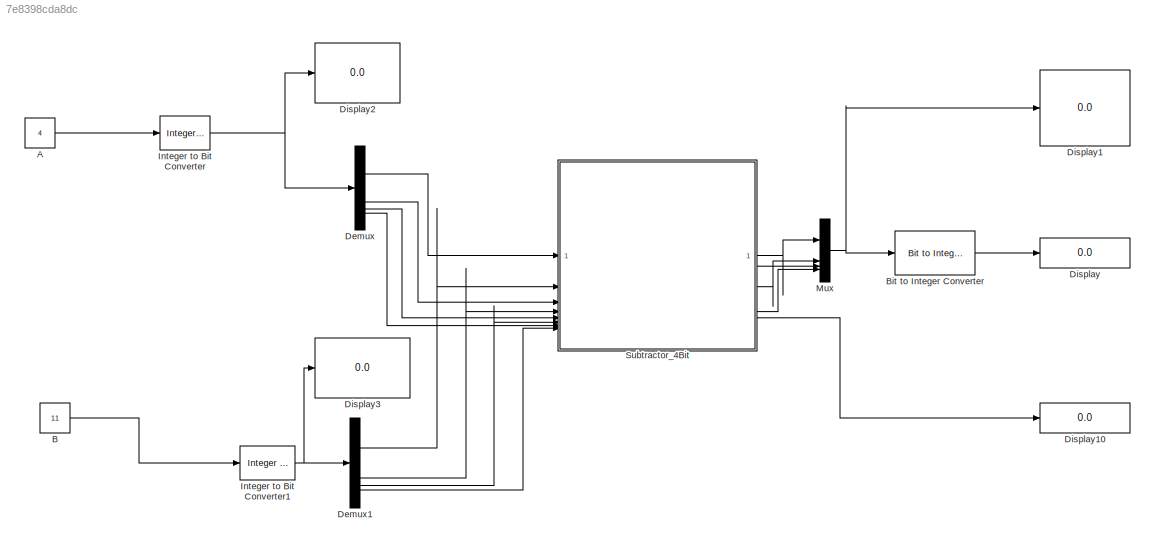
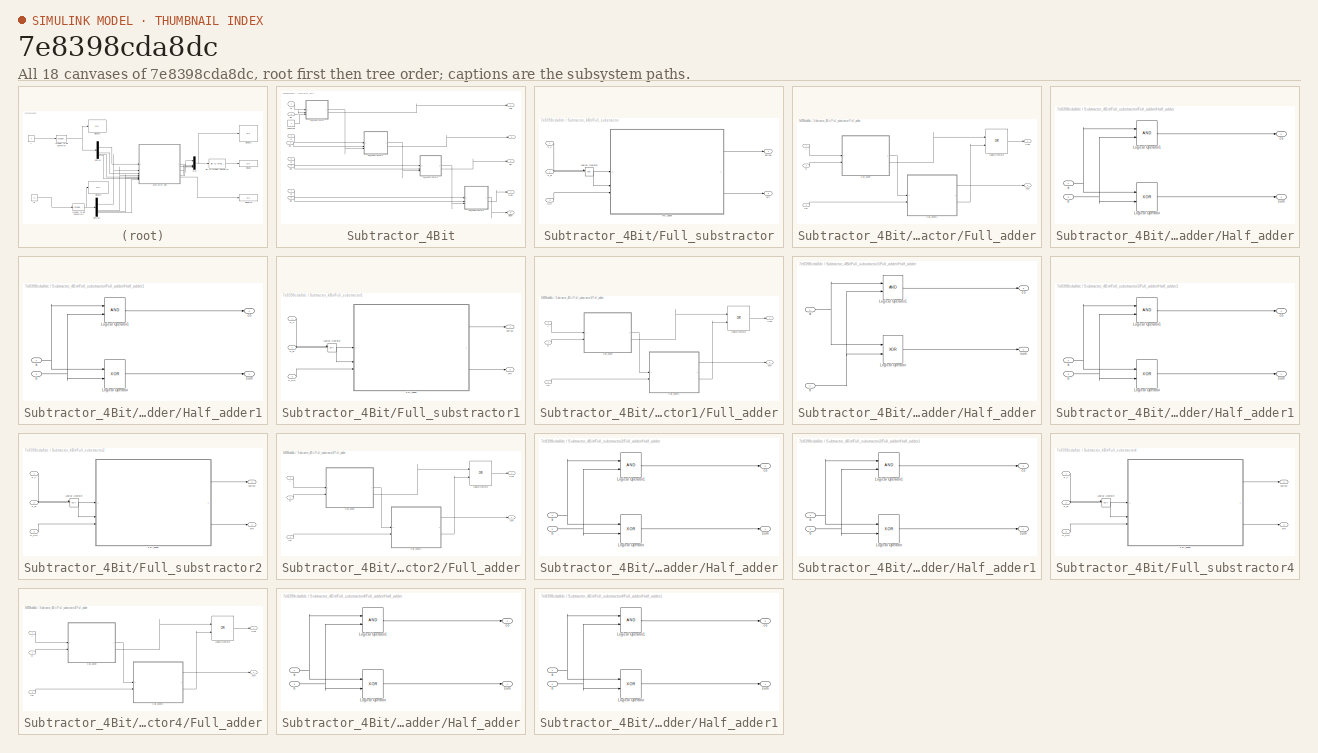
[diagram: thumbnail index - all 18 canvases of the model, root first then tree order]
MODEL slx_7e8398cda8dc
KIND model
CONFIG AbsTol = auto
CONFIG EnableMultiTasking = off
CONFIG FixedStep = auto
CONFIG MaxStep = auto
CONFIG MinStep = auto
CONFIG RelTol = 1e-3
CONFIG SampleTimeConstraint = Unconstrained
CONFIG SolverName = VariableStepAuto
CONFIG StartTime = 0.0
CONFIG StopTime = 10.0
BLOCK [Constant] A
  Value = 4
BLOCK [Constant] B
  Value = 11
BLOCK [Reference] Bit to Integer Converter  REF=simulink/Logic and Bit
Operations/Bit to Integer
Converter
  SourceBlock = simulink/Logic and Bit\nOperations/Bit to Integer\nConverter
  SourceType = Bit to Integer Converter
BLOCK [Demux] Demux
BLOCK [Demux] Demux1
BLOCK [Display] Display
  Decimation = 1
BLOCK [Display] Display1
  Decimation = 1
BLOCK [Display] Display10
  Decimation = 1
BLOCK [Display] Display2
  Decimation = 1
BLOCK [Display] Display3
  Decimation = 1
BLOCK [Reference] Integer to Bit Converter  REF=simulink/Logic and Bit
Operations/Integer to Bit
Converter
  SourceBlock = simulink/Logic and Bit\nOperations/Integer to Bit\nConverter
  SourceType = Integer to Bit Converter
BLOCK [Reference] Integer to Bit Converter1  REF=simulink/Logic and Bit
Operations/Integer to Bit
Converter
  SourceBlock = simulink/Logic and Bit\nOperations/Integer to Bit\nConverter
  SourceType = Integer to Bit Converter
BLOCK [Mux] Mux
  DisplayOption = bar
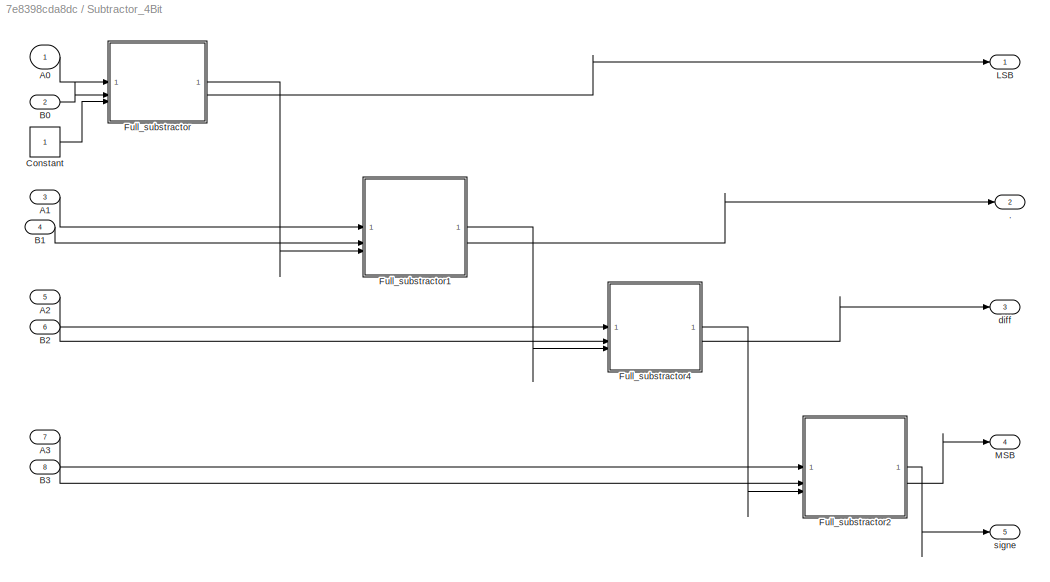
BLOCK [SubSystem] Subtractor_4Bit
BLOCK [Outport] Subtractor_4Bit/.
  Port = 2
BLOCK [Inport] Subtractor_4Bit/A0
BLOCK [Inport] Subtractor_4Bit/A1
  Port = 3
BLOCK [Inport] Subtractor_4Bit/A2
  Port = 5
BLOCK [Inport] Subtractor_4Bit/A3
  Port = 7
BLOCK [Inport] Subtractor_4Bit/B0
  Port = 2
BLOCK [Inport] Subtractor_4Bit/B1
  Port = 4
BLOCK [Inport] Subtractor_4Bit/B2
  Port = 6
BLOCK [Inport] Subtractor_4Bit/B3
  Port = 8
BLOCK [Constant] Subtractor_4Bit/Constant
BLOCK [SubSystem] Subtractor_4Bit/Full_substractor
BLOCK [Inport] Subtractor_4Bit/Full_substractor/Cin
  Port = 3
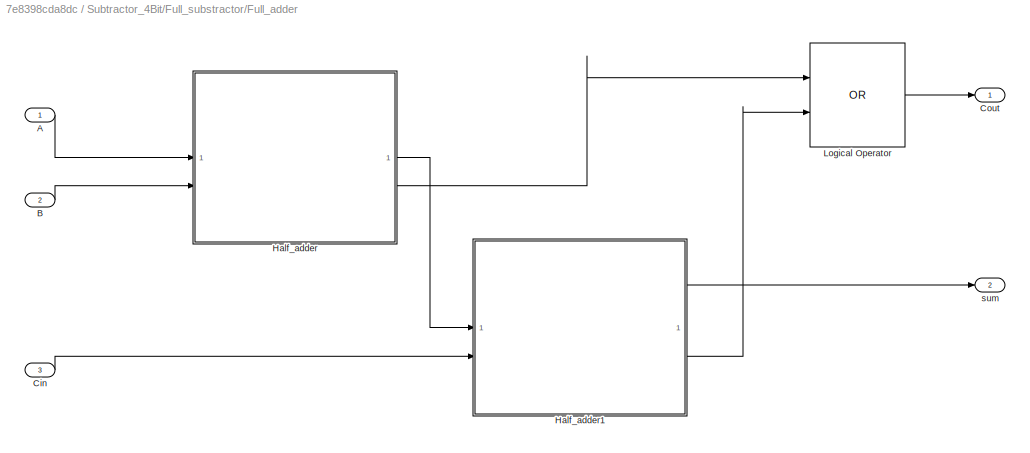
BLOCK [SubSystem] Subtractor_4Bit/Full_substractor/Full_adder
BLOCK [Inport] Subtractor_4Bit/Full_substractor/Full_adder/A
BLOCK [Inport] Subtractor_4Bit/Full_substractor/Full_adder/B
  Port = 2
BLOCK [Inport] Subtractor_4Bit/Full_substractor/Full_adder/Cin
  Port = 3
BLOCK [Outport] Subtractor_4Bit/Full_substractor/Full_adder/Cout
BLOCK [SubSystem] Subtractor_4Bit/Full_substractor/Full_adder/Half_adder
BLOCK [Logic] Subtractor_4Bit/Full_substractor/Full_adder/Half_adder/Logical Operator
  AllPortsSameDT = off
  Operator = XOR
  OutDataTypeStr = boolean
BLOCK [Logic] Subtractor_4Bit/Full_substractor/Full_adder/Half_adder/Logical Operator1
  AllPortsSameDT = off
  OutDataTypeStr = boolean
BLOCK [Inport] Subtractor_4Bit/Full_substractor/Full_adder/Half_adder/a
BLOCK [Inport] Subtractor_4Bit/Full_substractor/Full_adder/Half_adder/b
  Port = 2
BLOCK [Outport] Subtractor_4Bit/Full_substractor/Full_adder/Half_adder/co
  Port = 2
BLOCK [Outport] Subtractor_4Bit/Full_substractor/Full_adder/Half_adder/sum
BLOCK [SubSystem] Subtractor_4Bit/Full_substractor/Full_adder/Half_adder1
BLOCK [Logic] Subtractor_4Bit/Full_substractor/Full_adder/Half_adder1/Logical Operator
  AllPortsSameDT = off
  Operator = XOR
  OutDataTypeStr = boolean
BLOCK [Logic] Subtractor_4Bit/Full_substractor/Full_adder/Half_adder1/Logical Operator1
  AllPortsSameDT = off
  OutDataTypeStr = boolean
BLOCK [Inport] Subtractor_4Bit/Full_substractor/Full_adder/Half_adder1/a
BLOCK [Inport] Subtractor_4Bit/Full_substractor/Full_adder/Half_adder1/b
  Port = 2
BLOCK [Outport] Subtractor_4Bit/Full_substractor/Full_adder/Half_adder1/co
  Port = 2
BLOCK [Outport] Subtractor_4Bit/Full_substractor/Full_adder/Half_adder1/sum
BLOCK [Logic] Subtractor_4Bit/Full_substractor/Full_adder/Logical Operator
  AllPortsSameDT = off
  Operator = OR
  OutDataTypeStr = boolean
BLOCK [Outport] Subtractor_4Bit/Full_substractor/Full_adder/sum
  Port = 2
BLOCK [Logic] Subtractor_4Bit/Full_substractor/Logical Operator
  AllPortsSameDT = off
  Operator = NOT
  OutDataTypeStr = boolean
BLOCK [Inport] Subtractor_4Bit/Full_substractor/S_A
BLOCK [Inport] Subtractor_4Bit/Full_substractor/S_B
  Port = 2
BLOCK [Outport] Subtractor_4Bit/Full_substractor/borrow
BLOCK [Outport] Subtractor_4Bit/Full_substractor/diff
  Port = 2
BLOCK [SubSystem] Subtractor_4Bit/Full_substractor1
BLOCK [SubSystem] Subtractor_4Bit/Full_substractor1/Full_adder
BLOCK [Inport] Subtractor_4Bit/Full_substractor1/Full_adder/A
BLOCK [Inport] Subtractor_4Bit/Full_substractor1/Full_adder/B
  Port = 2
BLOCK [Inport] Subtractor_4Bit/Full_substractor1/Full_adder/Cin
  Port = 3
BLOCK [Outport] Subtractor_4Bit/Full_substractor1/Full_adder/Cout
BLOCK [SubSystem] Subtractor_4Bit/Full_substractor1/Full_adder/Half_adder
BLOCK [Logic] Subtractor_4Bit/Full_substractor1/Full_adder/Half_adder/Logical Operator
  AllPortsSameDT = off
  Operator = XOR
  OutDataTypeStr = boolean
BLOCK [Logic] Subtractor_4Bit/Full_substractor1/Full_adder/Half_adder/Logical Operator1
  AllPortsSameDT = off
  OutDataTypeStr = boolean
BLOCK [Inport] Subtractor_4Bit/Full_substractor1/Full_adder/Half_adder/a
BLOCK [Inport] Subtractor_4Bit/Full_substractor1/Full_adder/Half_adder/b
  Port = 2
BLOCK [Outport] Subtractor_4Bit/Full_substractor1/Full_adder/Half_adder/co
  Port = 2
BLOCK [Outport] Subtractor_4Bit/Full_substractor1/Full_adder/Half_adder/sum
BLOCK [SubSystem] Subtractor_4Bit/Full_substractor1/Full_adder/Half_adder1
BLOCK [Logic] Subtractor_4Bit/Full_substractor1/Full_adder/Half_adder1/Logical Operator
  AllPortsSameDT = off
  Operator = XOR
  OutDataTypeStr = boolean
BLOCK [Logic] Subtractor_4Bit/Full_substractor1/Full_adder/Half_adder1/Logical Operator1
  AllPortsSameDT = off
  OutDataTypeStr = boolean
BLOCK [Inport] Subtractor_4Bit/Full_substractor1/Full_adder/Half_adder1/a
BLOCK [Inport] Subtractor_4Bit/Full_substractor1/Full_adder/Half_adder1/b
  Port = 2
BLOCK [Outport] Subtractor_4Bit/Full_substractor1/Full_adder/Half_adder1/co
  Port = 2
BLOCK [Outport] Subtractor_4Bit/Full_substractor1/Full_adder/Half_adder1/sum
BLOCK [Logic] Subtractor_4Bit/Full_substractor1/Full_adder/Logical Operator
  AllPortsSameDT = off
  Operator = OR
  OutDataTypeStr = boolean
BLOCK [Outport] Subtractor_4Bit/Full_substractor1/Full_adder/sum
  Port = 2
BLOCK [Logic] Subtractor_4Bit/Full_substractor1/Logical Operator
  AllPortsSameDT = off
  Operator = NOT
  OutDataTypeStr = boolean
BLOCK [Inport] Subtractor_4Bit/Full_substractor1/S_A
BLOCK [Inport] Subtractor_4Bit/Full_substractor1/S_B
  Port = 2
BLOCK [Inport] Subtractor_4Bit/Full_substractor1/S_Cin
  Port = 3
BLOCK [Outport] Subtractor_4Bit/Full_substractor1/borrow
BLOCK [Outport] Subtractor_4Bit/Full_substractor1/diff
  Port = 2
BLOCK [SubSystem] Subtractor_4Bit/Full_substractor2
BLOCK [SubSystem] Subtractor_4Bit/Full_substractor2/Full_adder
BLOCK [Inport] Subtractor_4Bit/Full_substractor2/Full_adder/A
BLOCK [Inport] Subtractor_4Bit/Full_substractor2/Full_adder/B
  Port = 2
BLOCK [Inport] Subtractor_4Bit/Full_substractor2/Full_adder/Cin
  Port = 3
BLOCK [Outport] Subtractor_4Bit/Full_substractor2/Full_adder/Cout
BLOCK [SubSystem] Subtractor_4Bit/Full_substractor2/Full_adder/Half_adder
BLOCK [Logic] Subtractor_4Bit/Full_substractor2/Full_adder/Half_adder/Logical Operator
  AllPortsSameDT = off
  Operator = XOR
  OutDataTypeStr = boolean
BLOCK [Logic] Subtractor_4Bit/Full_substractor2/Full_adder/Half_adder/Logical Operator1
  AllPortsSameDT = off
  OutDataTypeStr = boolean
BLOCK [Inport] Subtractor_4Bit/Full_substractor2/Full_adder/Half_adder/a
BLOCK [Inport] Subtractor_4Bit/Full_substractor2/Full_adder/Half_adder/b
  Port = 2
BLOCK [Outport] Subtractor_4Bit/Full_substractor2/Full_adder/Half_adder/co
  Port = 2
BLOCK [Outport] Subtractor_4Bit/Full_substractor2/Full_adder/Half_adder/sum
BLOCK [SubSystem] Subtractor_4Bit/Full_substractor2/Full_adder/Half_adder1
BLOCK [Logic] Subtractor_4Bit/Full_substractor2/Full_adder/Half_adder1/Logical Operator
  AllPortsSameDT = off
  Operator = XOR
  OutDataTypeStr = boolean
BLOCK [Logic] Subtractor_4Bit/Full_substractor2/Full_adder/Half_adder1/Logical Operator1
  AllPortsSameDT = off
  OutDataTypeStr = boolean
BLOCK [Inport] Subtractor_4Bit/Full_substractor2/Full_adder/Half_adder1/a
BLOCK [Inport] Subtractor_4Bit/Full_substractor2/Full_adder/Half_adder1/b
  Port = 2
BLOCK [Outport] Subtractor_4Bit/Full_substractor2/Full_adder/Half_adder1/co
  Port = 2
BLOCK [Outport] Subtractor_4Bit/Full_substractor2/Full_adder/Half_adder1/sum
BLOCK [Logic] Subtractor_4Bit/Full_substractor2/Full_adder/Logical Operator
  AllPortsSameDT = off
  Operator = OR
  OutDataTypeStr = boolean
BLOCK [Outport] Subtractor_4Bit/Full_substractor2/Full_adder/sum
  Port = 2
BLOCK [Logic] Subtractor_4Bit/Full_substractor2/Logical Operator
  AllPortsSameDT = off
  Operator = NOT
  OutDataTypeStr = boolean
BLOCK [Inport] Subtractor_4Bit/Full_substractor2/S_A
BLOCK [Inport] Subtractor_4Bit/Full_substractor2/S_B
  Port = 2
BLOCK [Inport] Subtractor_4Bit/Full_substractor2/S_Cin
  Port = 3
BLOCK [Outport] Subtractor_4Bit/Full_substractor2/borrow
BLOCK [Outport] Subtractor_4Bit/Full_substractor2/diff
  Port = 2
BLOCK [SubSystem] Subtractor_4Bit/Full_substractor4
BLOCK [SubSystem] Subtractor_4Bit/Full_substractor4/Full_adder
BLOCK [Inport] Subtractor_4Bit/Full_substractor4/Full_adder/A
BLOCK [Inport] Subtractor_4Bit/Full_substractor4/Full_adder/B
  Port = 2
BLOCK [Inport] Subtractor_4Bit/Full_substractor4/Full_adder/Cin
  Port = 3
BLOCK [Outport] Subtractor_4Bit/Full_substractor4/Full_adder/Cout
BLOCK [SubSystem] Subtractor_4Bit/Full_substractor4/Full_adder/Half_adder
BLOCK [Logic] Subtractor_4Bit/Full_substractor4/Full_adder/Half_adder/Logical Operator
  AllPortsSameDT = off
  Operator = XOR
  OutDataTypeStr = boolean
BLOCK [Logic] Subtractor_4Bit/Full_substractor4/Full_adder/Half_adder/Logical Operator1
  AllPortsSameDT = off
  OutDataTypeStr = boolean
BLOCK [Inport] Subtractor_4Bit/Full_substractor4/Full_adder/Half_adder/a
BLOCK [Inport] Subtractor_4Bit/Full_substractor4/Full_adder/Half_adder/b
  Port = 2
BLOCK [Outport] Subtractor_4Bit/Full_substractor4/Full_adder/Half_adder/co
  Port = 2
BLOCK [Outport] Subtractor_4Bit/Full_substractor4/Full_adder/Half_adder/sum
BLOCK [SubSystem] Subtractor_4Bit/Full_substractor4/Full_adder/Half_adder1
BLOCK [Logic] Subtractor_4Bit/Full_substractor4/Full_adder/Half_adder1/Logical Operator
  AllPortsSameDT = off
  Operator = XOR
  OutDataTypeStr = boolean
BLOCK [Logic] Subtractor_4Bit/Full_substractor4/Full_adder/Half_adder1/Logical Operator1
  AllPortsSameDT = off
  OutDataTypeStr = boolean
BLOCK [Inport] Subtractor_4Bit/Full_substractor4/Full_adder/Half_adder1/a
BLOCK [Inport] Subtractor_4Bit/Full_substractor4/Full_adder/Half_adder1/b
  Port = 2
BLOCK [Outport] Subtractor_4Bit/Full_substractor4/Full_adder/Half_adder1/co
  Port = 2
BLOCK [Outport] Subtractor_4Bit/Full_substractor4/Full_adder/Half_adder1/sum
BLOCK [Logic] Subtractor_4Bit/Full_substractor4/Full_adder/Logical Operator
  AllPortsSameDT = off
  Operator = OR
  OutDataTypeStr = boolean
BLOCK [Outport] Subtractor_4Bit/Full_substractor4/Full_adder/sum
  Port = 2
BLOCK [Logic] Subtractor_4Bit/Full_substractor4/Logical Operator
  AllPortsSameDT = off
  Operator = NOT
  OutDataTypeStr = boolean
BLOCK [Inport] Subtractor_4Bit/Full_substractor4/S_A
BLOCK [Inport] Subtractor_4Bit/Full_substractor4/S_B
  Port = 2
BLOCK [Inport] Subtractor_4Bit/Full_substractor4/S_Cin
  Port = 3
BLOCK [Outport] Subtractor_4Bit/Full_substractor4/borrow
BLOCK [Outport] Subtractor_4Bit/Full_substractor4/diff
  Port = 2
BLOCK [Outport] Subtractor_4Bit/LSB
BLOCK [Outport] Subtractor_4Bit/MSB
  Port = 4
BLOCK [Outport] Subtractor_4Bit/diff
  Port = 3
BLOCK [Outport] Subtractor_4Bit/signe
  Port = 5
LINE A:1 -> Integer to Bit Converter:1
LINE B:1 -> Integer to Bit Converter1:1
LINE Bit to Integer Converter:1 -> Display:1
LINE Demux1:1 -> Subtractor_4Bit:2
LINE Demux1:2 -> Subtractor_4Bit:4
LINE Demux1:3 -> Subtractor_4Bit:6
LINE Demux1:4 -> Subtractor_4Bit:8
LINE Demux:1 -> Subtractor_4Bit:1
LINE Demux:2 -> Subtractor_4Bit:3
LINE Demux:3 -> Subtractor_4Bit:5
LINE Demux:4 -> Subtractor_4Bit:7
NET Integer to Bit Converter1:1 -> Demux1:1, Display3:1
NET Integer to Bit Converter:1 -> Demux:1, Display2:1
NET Mux:1 -> Bit to Integer Converter:1, Display1:1
LINE Subtractor_4Bit/A0:1 -> Subtractor_4Bit/Full_substractor:1
LINE Subtractor_4Bit/A1:1 -> Subtractor_4Bit/Full_substractor1:1
LINE Subtractor_4Bit/A2:1 -> Subtractor_4Bit/Full_substractor4:1
LINE Subtractor_4Bit/A3:1 -> Subtractor_4Bit/Full_substractor2:1
LINE Subtractor_4Bit/B0:1 -> Subtractor_4Bit/Full_substractor:2
LINE Subtractor_4Bit/B1:1 -> Subtractor_4Bit/Full_substractor1:2
LINE Subtractor_4Bit/B2:1 -> Subtractor_4Bit/Full_substractor4:2
LINE Subtractor_4Bit/B3:1 -> Subtractor_4Bit/Full_substractor2:2
LINE Subtractor_4Bit/Constant:1 -> Subtractor_4Bit/Full_substractor:3
LINE Subtractor_4Bit/Full_substractor/Cin:1 -> Subtractor_4Bit/Full_substractor/Full_adder:3
LINE Subtractor_4Bit/Full_substractor/Full_adder/A:1 -> Subtractor_4Bit/Full_substractor/Full_adder/Half_adder:1
LINE Subtractor_4Bit/Full_substractor/Full_adder/B:1 -> Subtractor_4Bit/Full_substractor/Full_adder/Half_adder:2
LINE Subtractor_4Bit/Full_substractor/Full_adder/Cin:1 -> Subtractor_4Bit/Full_substractor/Full_adder/Half_adder1:2
LINE Subtractor_4Bit/Full_substractor/Full_adder/Half_adder/Logical Operator1:1 -> Subtractor_4Bit/Full_substractor/Full_adder/Half_adder/co:1
LINE Subtractor_4Bit/Full_substractor/Full_adder/Half_adder/Logical Operator:1 -> Subtractor_4Bit/Full_substractor/Full_adder/Half_adder/sum:1
NET Subtractor_4Bit/Full_substractor/Full_adder/Half_adder/a:1 -> Subtractor_4Bit/Full_substractor/Full_adder/Half_adder/Logical Operator1:1, Subtractor_4Bit/Full_substractor/Full_adder/Half_adder/Logical Operator:1
NET Subtractor_4Bit/Full_substractor/Full_adder/Half_adder/b:1 -> Subtractor_4Bit/Full_substractor/Full_adder/Half_adder/Logical Operator1:2, Subtractor_4Bit/Full_substractor/Full_adder/Half_adder/Logical Operator:2
LINE Subtractor_4Bit/Full_substractor/Full_adder/Half_adder1/Logical Operator1:1 -> Subtractor_4Bit/Full_substractor/Full_adder/Half_adder1/co:1
LINE Subtractor_4Bit/Full_substractor/Full_adder/Half_adder1/Logical Operator:1 -> Subtractor_4Bit/Full_substractor/Full_adder/Half_adder1/sum:1
NET Subtractor_4Bit/Full_substractor/Full_adder/Half_adder1/a:1 -> Subtractor_4Bit/Full_substractor/Full_adder/Half_adder1/Logical Operator1:1, Subtractor_4Bit/Full_substractor/Full_adder/Half_adder1/Logical Operator:1
NET Subtractor_4Bit/Full_substractor/Full_adder/Half_adder1/b:1 -> Subtractor_4Bit/Full_substractor/Full_adder/Half_adder1/Logical Operator1:2, Subtractor_4Bit/Full_substractor/Full_adder/Half_adder1/Logical Operator:2
LINE Subtractor_4Bit/Full_substractor/Full_adder/Half_adder1:1 -> Subtractor_4Bit/Full_substractor/Full_adder/sum:1
LINE Subtractor_4Bit/Full_substractor/Full_adder/Half_adder1:2 -> Subtractor_4Bit/Full_substractor/Full_adder/Logical Operator:2
LINE Subtractor_4Bit/Full_substractor/Full_adder/Half_adder:1 -> Subtractor_4Bit/Full_substractor/Full_adder/Half_adder1:1
LINE Subtractor_4Bit/Full_substractor/Full_adder/Half_adder:2 -> Subtractor_4Bit/Full_substractor/Full_adder/Logical Operator:1
LINE Subtractor_4Bit/Full_substractor/Full_adder/Logical Operator:1 -> Subtractor_4Bit/Full_substractor/Full_adder/Cout:1
LINE Subtractor_4Bit/Full_substractor/Full_adder:1 -> Subtractor_4Bit/Full_substractor/borrow:1
LINE Subtractor_4Bit/Full_substractor/Full_adder:2 -> Subtractor_4Bit/Full_substractor/diff:1
LINE Subtractor_4Bit/Full_substractor/Logical Operator:1 -> Subtractor_4Bit/Full_substractor/Full_adder:2
LINE Subtractor_4Bit/Full_substractor/S_A:1 -> Subtractor_4Bit/Full_substractor/Full_adder:1
LINE Subtractor_4Bit/Full_substractor/S_B:1 -> Subtractor_4Bit/Full_substractor/Logical Operator:1
LINE Subtractor_4Bit/Full_substractor1/Full_adder/A:1 -> Subtractor_4Bit/Full_substractor1/Full_adder/Half_adder:1
LINE Subtractor_4Bit/Full_substractor1/Full_adder/B:1 -> Subtractor_4Bit/Full_substractor1/Full_adder/Half_adder:2
LINE Subtractor_4Bit/Full_substractor1/Full_adder/Cin:1 -> Subtractor_4Bit/Full_substractor1/Full_adder/Half_adder1:2
LINE Subtractor_4Bit/Full_substractor1/Full_adder/Half_adder/Logical Operator1:1 -> Subtractor_4Bit/Full_substractor1/Full_adder/Half_adder/co:1
LINE Subtractor_4Bit/Full_substractor1/Full_adder/Half_adder/Logical Operator:1 -> Subtractor_4Bit/Full_substractor1/Full_adder/Half_adder/sum:1
NET Subtractor_4Bit/Full_substractor1/Full_adder/Half_adder/a:1 -> Subtractor_4Bit/Full_substractor1/Full_adder/Half_adder/Logical Operator1:1, Subtractor_4Bit/Full_substractor1/Full_adder/Half_adder/Logical Operator:1
NET Subtractor_4Bit/Full_substractor1/Full_adder/Half_adder/b:1 -> Subtractor_4Bit/Full_substractor1/Full_adder/Half_adder/Logical Operator1:2, Subtractor_4Bit/Full_substractor1/Full_adder/Half_adder/Logical Operator:2
LINE Subtractor_4Bit/Full_substractor1/Full_adder/Half_adder1/Logical Operator1:1 -> Subtractor_4Bit/Full_substractor1/Full_adder/Half_adder1/co:1
LINE Subtractor_4Bit/Full_substractor1/Full_adder/Half_adder1/Logical Operator:1 -> Subtractor_4Bit/Full_substractor1/Full_adder/Half_adder1/sum:1
NET Subtractor_4Bit/Full_substractor1/Full_adder/Half_adder1/a:1 -> Subtractor_4Bit/Full_substractor1/Full_adder/Half_adder1/Logical Operator1:1, Subtractor_4Bit/Full_substractor1/Full_adder/Half_adder1/Logical Operator:1
NET Subtractor_4Bit/Full_substractor1/Full_adder/Half_adder1/b:1 -> Subtractor_4Bit/Full_substractor1/Full_adder/Half_adder1/Logical Operator1:2, Subtractor_4Bit/Full_substractor1/Full_adder/Half_adder1/Logical Operator:2
LINE Subtractor_4Bit/Full_substractor1/Full_adder/Half_adder1:1 -> Subtractor_4Bit/Full_substractor1/Full_adder/sum:1
LINE Subtractor_4Bit/Full_substractor1/Full_adder/Half_adder1:2 -> Subtractor_4Bit/Full_substractor1/Full_adder/Logical Operator:2
LINE Subtractor_4Bit/Full_substractor1/Full_adder/Half_adder:1 -> Subtractor_4Bit/Full_substractor1/Full_adder/Half_adder1:1
LINE Subtractor_4Bit/Full_substractor1/Full_adder/Half_adder:2 -> Subtractor_4Bit/Full_substractor1/Full_adder/Logical Operator:1
LINE Subtractor_4Bit/Full_substractor1/Full_adder/Logical Operator:1 -> Subtractor_4Bit/Full_substractor1/Full_adder/Cout:1
LINE Subtractor_4Bit/Full_substractor1/Full_adder:1 -> Subtractor_4Bit/Full_substractor1/borrow:1
LINE Subtractor_4Bit/Full_substractor1/Full_adder:2 -> Subtractor_4Bit/Full_substractor1/diff:1
LINE Subtractor_4Bit/Full_substractor1/Logical Operator:1 -> Subtractor_4Bit/Full_substractor1/Full_adder:2
LINE Subtractor_4Bit/Full_substractor1/S_A:1 -> Subtractor_4Bit/Full_substractor1/Full_adder:1
LINE Subtractor_4Bit/Full_substractor1/S_B:1 -> Subtractor_4Bit/Full_substractor1/Logical Operator:1
LINE Subtractor_4Bit/Full_substractor1/S_Cin:1 -> Subtractor_4Bit/Full_substractor1/Full_adder:3
LINE Subtractor_4Bit/Full_substractor1:1 -> Subtractor_4Bit/Full_substractor4:3
LINE Subtractor_4Bit/Full_substractor1:2 -> Subtractor_4Bit/.:1
LINE Subtractor_4Bit/Full_substractor2/Full_adder/A:1 -> Subtractor_4Bit/Full_substractor2/Full_adder/Half_adder:1
LINE Subtractor_4Bit/Full_substractor2/Full_adder/B:1 -> Subtractor_4Bit/Full_substractor2/Full_adder/Half_adder:2
LINE Subtractor_4Bit/Full_substractor2/Full_adder/Cin:1 -> Subtractor_4Bit/Full_substractor2/Full_adder/Half_adder1:2
LINE Subtractor_4Bit/Full_substractor2/Full_adder/Half_adder/Logical Operator1:1 -> Subtractor_4Bit/Full_substractor2/Full_adder/Half_adder/co:1
LINE Subtractor_4Bit/Full_substractor2/Full_adder/Half_adder/Logical Operator:1 -> Subtractor_4Bit/Full_substractor2/Full_adder/Half_adder/sum:1
NET Subtractor_4Bit/Full_substractor2/Full_adder/Half_adder/a:1 -> Subtractor_4Bit/Full_substractor2/Full_adder/Half_adder/Logical Operator1:1, Subtractor_4Bit/Full_substractor2/Full_adder/Half_adder/Logical Operator:1
NET Subtractor_4Bit/Full_substractor2/Full_adder/Half_adder/b:1 -> Subtractor_4Bit/Full_substractor2/Full_adder/Half_adder/Logical Operator1:2, Subtractor_4Bit/Full_substractor2/Full_adder/Half_adder/Logical Operator:2
LINE Subtractor_4Bit/Full_substractor2/Full_adder/Half_adder1/Logical Operator1:1 -> Subtractor_4Bit/Full_substractor2/Full_adder/Half_adder1/co:1
LINE Subtractor_4Bit/Full_substractor2/Full_adder/Half_adder1/Logical Operator:1 -> Subtractor_4Bit/Full_substractor2/Full_adder/Half_adder1/sum:1
NET Subtractor_4Bit/Full_substractor2/Full_adder/Half_adder1/a:1 -> Subtractor_4Bit/Full_substractor2/Full_adder/Half_adder1/Logical Operator1:1, Subtractor_4Bit/Full_substractor2/Full_adder/Half_adder1/Logical Operator:1
NET Subtractor_4Bit/Full_substractor2/Full_adder/Half_adder1/b:1 -> Subtractor_4Bit/Full_substractor2/Full_adder/Half_adder1/Logical Operator1:2, Subtractor_4Bit/Full_substractor2/Full_adder/Half_adder1/Logical Operator:2
LINE Subtractor_4Bit/Full_substractor2/Full_adder/Half_adder1:1 -> Subtractor_4Bit/Full_substractor2/Full_adder/sum:1
LINE Subtractor_4Bit/Full_substractor2/Full_adder/Half_adder1:2 -> Subtractor_4Bit/Full_substractor2/Full_adder/Logical Operator:2
LINE Subtractor_4Bit/Full_substractor2/Full_adder/Half_adder:1 -> Subtractor_4Bit/Full_substractor2/Full_adder/Half_adder1:1
LINE Subtractor_4Bit/Full_substractor2/Full_adder/Half_adder:2 -> Subtractor_4Bit/Full_substractor2/Full_adder/Logical Operator:1
LINE Subtractor_4Bit/Full_substractor2/Full_adder/Logical Operator:1 -> Subtractor_4Bit/Full_substractor2/Full_adder/Cout:1
LINE Subtractor_4Bit/Full_substractor2/Full_adder:1 -> Subtractor_4Bit/Full_substractor2/borrow:1
LINE Subtractor_4Bit/Full_substractor2/Full_adder:2 -> Subtractor_4Bit/Full_substractor2/diff:1
LINE Subtractor_4Bit/Full_substractor2/Logical Operator:1 -> Subtractor_4Bit/Full_substractor2/Full_adder:2
LINE Subtractor_4Bit/Full_substractor2/S_A:1 -> Subtractor_4Bit/Full_substractor2/Full_adder:1
LINE Subtractor_4Bit/Full_substractor2/S_B:1 -> Subtractor_4Bit/Full_substractor2/Logical Operator:1
LINE Subtractor_4Bit/Full_substractor2/S_Cin:1 -> Subtractor_4Bit/Full_substractor2/Full_adder:3
LINE Subtractor_4Bit/Full_substractor2:1 -> Subtractor_4Bit/signe:1
LINE Subtractor_4Bit/Full_substractor2:2 -> Subtractor_4Bit/MSB:1
LINE Subtractor_4Bit/Full_substractor4/Full_adder/A:1 -> Subtractor_4Bit/Full_substractor4/Full_adder/Half_adder:1
LINE Subtractor_4Bit/Full_substractor4/Full_adder/B:1 -> Subtractor_4Bit/Full_substractor4/Full_adder/Half_adder:2
LINE Subtractor_4Bit/Full_substractor4/Full_adder/Cin:1 -> Subtractor_4Bit/Full_substractor4/Full_adder/Half_adder1:2
LINE Subtractor_4Bit/Full_substractor4/Full_adder/Half_adder/Logical Operator1:1 -> Subtractor_4Bit/Full_substractor4/Full_adder/Half_adder/co:1
LINE Subtractor_4Bit/Full_substractor4/Full_adder/Half_adder/Logical Operator:1 -> Subtractor_4Bit/Full_substractor4/Full_adder/Half_adder/sum:1
NET Subtractor_4Bit/Full_substractor4/Full_adder/Half_adder/a:1 -> Subtractor_4Bit/Full_substractor4/Full_adder/Half_adder/Logical Operator1:1, Subtractor_4Bit/Full_substractor4/Full_adder/Half_adder/Logical Operator:1
NET Subtractor_4Bit/Full_substractor4/Full_adder/Half_adder/b:1 -> Subtractor_4Bit/Full_substractor4/Full_adder/Half_adder/Logical Operator1:2, Subtractor_4Bit/Full_substractor4/Full_adder/Half_adder/Logical Operator:2
LINE Subtractor_4Bit/Full_substractor4/Full_adder/Half_adder1/Logical Operator1:1 -> Subtractor_4Bit/Full_substractor4/Full_adder/Half_adder1/co:1
LINE Subtractor_4Bit/Full_substractor4/Full_adder/Half_adder1/Logical Operator:1 -> Subtractor_4Bit/Full_substractor4/Full_adder/Half_adder1/sum:1
NET Subtractor_4Bit/Full_substractor4/Full_adder/Half_adder1/a:1 -> Subtractor_4Bit/Full_substractor4/Full_adder/Half_adder1/Logical Operator1:1, Subtractor_4Bit/Full_substractor4/Full_adder/Half_adder1/Logical Operator:1
NET Subtractor_4Bit/Full_substractor4/Full_adder/Half_adder1/b:1 -> Subtractor_4Bit/Full_substractor4/Full_adder/Half_adder1/Logical Operator1:2, Subtractor_4Bit/Full_substractor4/Full_adder/Half_adder1/Logical Operator:2
LINE Subtractor_4Bit/Full_substractor4/Full_adder/Half_adder1:1 -> Subtractor_4Bit/Full_substractor4/Full_adder/sum:1
LINE Subtractor_4Bit/Full_substractor4/Full_adder/Half_adder1:2 -> Subtractor_4Bit/Full_substractor4/Full_adder/Logical Operator:2
LINE Subtractor_4Bit/Full_substractor4/Full_adder/Half_adder:1 -> Subtractor_4Bit/Full_substractor4/Full_adder/Half_adder1:1
LINE Subtractor_4Bit/Full_substractor4/Full_adder/Half_adder:2 -> Subtractor_4Bit/Full_substractor4/Full_adder/Logical Operator:1
LINE Subtractor_4Bit/Full_substractor4/Full_adder/Logical Operator:1 -> Subtractor_4Bit/Full_substractor4/Full_adder/Cout:1
LINE Subtractor_4Bit/Full_substractor4/Full_adder:1 -> Subtractor_4Bit/Full_substractor4/borrow:1
LINE Subtractor_4Bit/Full_substractor4/Full_adder:2 -> Subtractor_4Bit/Full_substractor4/diff:1
LINE Subtractor_4Bit/Full_substractor4/Logical Operator:1 -> Subtractor_4Bit/Full_substractor4/Full_adder:2
LINE Subtractor_4Bit/Full_substractor4/S_A:1 -> Subtractor_4Bit/Full_substractor4/Full_adder:1
LINE Subtractor_4Bit/Full_substractor4/S_B:1 -> Subtractor_4Bit/Full_substractor4/Logical Operator:1
LINE Subtractor_4Bit/Full_substractor4/S_Cin:1 -> Subtractor_4Bit/Full_substractor4/Full_adder:3
LINE Subtractor_4Bit/Full_substractor4:1 -> Subtractor_4Bit/Full_substractor2:3
LINE Subtractor_4Bit/Full_substractor4:2 -> Subtractor_4Bit/diff:1
LINE Subtractor_4Bit/Full_substractor:1 -> Subtractor_4Bit/Full_substractor1:3
LINE Subtractor_4Bit/Full_substractor:2 -> Subtractor_4Bit/LSB:1
LINE Subtractor_4Bit:1 -> Mux:1
LINE Subtractor_4Bit:2 -> Mux:2
LINE Subtractor_4Bit:3 -> Mux:3
LINE Subtractor_4Bit:4 -> Mux:4
LINE Subtractor_4Bit:5 -> Display10:1
note: NET lines group one-source signal fan-out (src -> all destinations, sorted); 1:1 wires keep LINE
